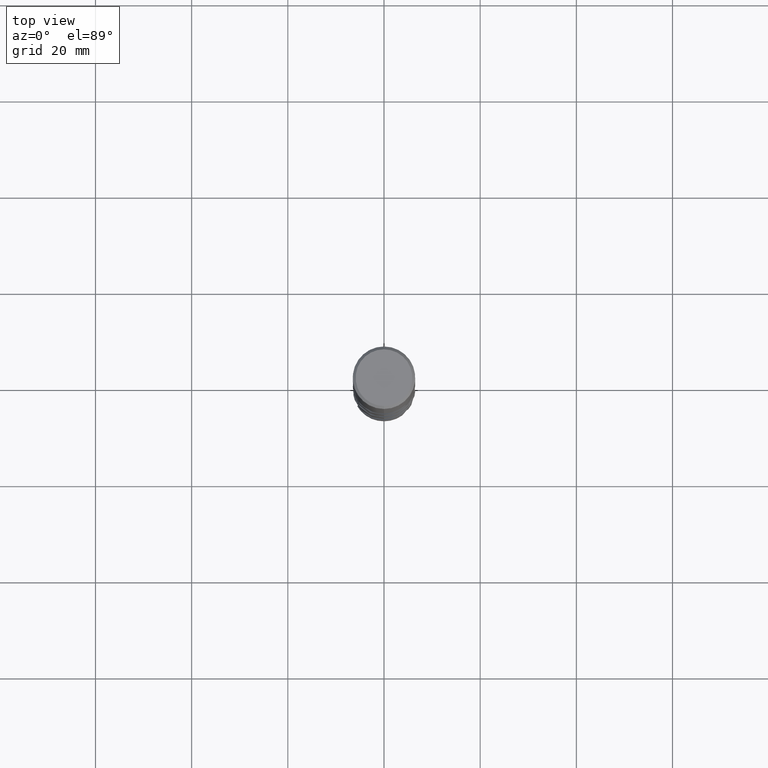
[diagram: clean part render]
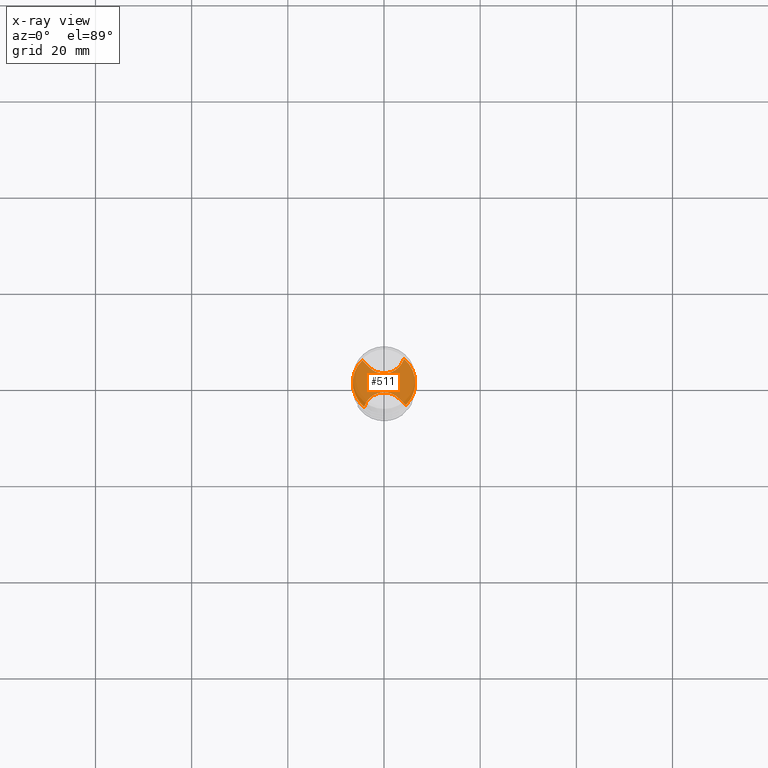
[diagram: x-ray — body ghosted, one internal face saturated and labeled with its STEP entity id]
A machine part, top view, then the same camera in x-ray: the body is ghosted and one INTERNAL B-rep face — a face not visible from any outside direction — is saturated and labeled: STEP entity #511.
In plain terms, the highlighted planar face has unit normal (-0, 0, 1).
Its self-contained STEP definition (entity closure, byte-faithful):
#281=EDGE_CURVE('',#367,#369,#759,.T.);
#303=VERTEX_POINT('',#782);
#353=VERTEX_POINT('',#839);
#357=EDGE_CURVE('',#303,#353,#843,.T.);
#367=VERTEX_POINT('',#854);
#369=VERTEX_POINT('',#856);
#441=EDGE_CURVE('',#451,#683,#934,.T.);
#451=VERTEX_POINT('',#945);
#483=EDGE_CURVE('',#369,#353,#980,.T.);
#511=ADVANCED_FACE('',(#1012),#1013,.T.);
#551=EDGE_CURVE('',#367,#683,#1054,.T.);
#683=VERTEX_POINT('',#1197);
#701=EDGE_CURVE('',#303,#451,#1217,.T.);
#759=B_SPLINE_CURVE_WITH_KNOTS('',3,(#1440,#1441,#1442,#1443,#1444,#1445,#1446,#1447,#1448,#1449,#1450,#1451,#1452,#1453,#1454,#1455),.UNSPECIFIED.,.F.,.F.,(4,2,2,2,2,2,2,4),(0.0,1.69272766620681,3.38528938576246,5.07782537036684,6.77045669752471,8.46324854416003,9.48474749668166,10.5062613168687),.UNSPECIFIED.);
#782=CARTESIAN_POINT('',(-4.13948712457755,-5.01132181719122,-63.2));
#839=CARTESIAN_POINT('',(-4.51925206355144,4.6717299575303,-63.2));
#843=CIRCLE('',#2412,6.4999);
#854=CARTESIAN_POINT('',(4.13948712457755,5.01132181719122,-63.2));
#856=CARTESIAN_POINT('',(-3.06725438271398,3.21954414970437,-63.2));
#934=B_SPLINE_CURVE_WITH_KNOTS('',3,(#4953,#4954,#4955,#4956),.UNSPECIFIED.,.F.,.F.,(4,4),(0.0,4.68854783705501),.UNSPECIFIED.);
#945=CARTESIAN_POINT('',(3.06725438271398,-3.21954414970437,-63.2));
#980=B_SPLINE_CURVE_WITH_KNOTS('',3,(#5219,#5220,#5221,#5222),.UNSPECIFIED.,.F.,.F.,(4,4),(0.0,4.68854783604494),.UNSPECIFIED.);
#1012=FACE_OUTER_BOUND('',#5682,.T.);
#1013=PLANE('',#5683);
#1054=CIRCLE('',#6170,6.4999);
#1197=CARTESIAN_POINT('',(4.51925206355144,-4.6717299575303,-63.2));
#1217=B_SPLINE_CURVE_WITH_KNOTS('',3,(#7000,#7001,#7002,#7003,#7004,#7005,#7006,#7007,#7008,#7009,#7010,#7011,#7012,#7013,#7014,#7015),.UNSPECIFIED.,.F.,.F.,(4,2,2,2,2,2,2,4),(0.0,1.69272766620687,3.38528938576262,5.07782537036708,6.77045669752501,8.4632485441604,9.48474749668207,10.5062613168692),.UNSPECIFIED.);
#1440=CARTESIAN_POINT('',(4.32198762332252,6.5499,-63.2));
#1441=CARTESIAN_POINT('',(4.3567711030581,5.98673060198163,-63.2));
#1442=CARTESIAN_POINT('',(4.28122432116167,5.42215440346621,-63.2));
#1443=CARTESIAN_POINT('',(3.91796917489396,4.35379366624626,-63.2));
#1444=CARTESIAN_POINT('',(3.63375631242431,3.86022337164424,-63.2));
#1445=CARTESIAN_POINT('',(2.89213237675276,3.00981356482723,-63.2));
#1446=CARTESIAN_POINT('',(2.44181813834897,2.6611068177494,-63.2));
#1447=CARTESIAN_POINT('',(1.43284203826779,2.15590972891982,-63.2));
#1448=CARTESIAN_POINT('',(0.883824290602945,2.00426186104255,-63.2));
#1449=CARTESIAN_POINT('',(-0.241493951561731,1.91992846596278,-63.2));
#1450=CARTESIAN_POINT('',(-0.807036541703551,1.98806987421916,-63.2));
#1451=CARTESIAN_POINT('',(-1.66739449168009,2.26804019730336,-63.2));
#1452=CARTESIAN_POINT('',(-1.97763963155897,2.41119867401506,-63.2));
#1453=CARTESIAN_POINT('',(-2.558199795387,2.76717352725625,-63.2));
#1454=CARTESIAN_POINT('',(-2.82649729914106,2.97875420769151,-63.2));
#1455=CARTESIAN_POINT('',(-3.06725438271398,3.21954414970437,-63.2));
#2412=AXIS2_PLACEMENT_3D('',#7215,#7216,#7217);
#4953=CARTESIAN_POINT('',(3.06725438278469,-3.21954414963367,-63.2));
#4954=CARTESIAN_POINT('',(4.17228780394936,-4.32471337062981,-63.2));
#4955=CARTESIAN_POINT('',(5.29134438865489,-5.44392344529883,-63.2));
#4956=CARTESIAN_POINT('',(6.39714621457818,-6.54990000000001,-63.2));
#5219=CARTESIAN_POINT('',(-3.06725438278469,3.21954414963367,-63.2));
#5220=CARTESIAN_POINT('',(-4.1722878037113,4.32471337039172,-63.2));
#5221=CARTESIAN_POINT('',(-5.2913443885753,5.44392344521923,-63.2));
#5222=CARTESIAN_POINT('',(-6.39714621457818,6.5499,-63.2));
#5682=EDGE_LOOP('',(#7385,#7386,#7387,#7388,#7389,#7390));
#5683=AXIS2_PLACEMENT_3D('',#7391,#7392,#7393);
#6170=AXIS2_PLACEMENT_3D('',#7404,#7405,#7406);
#7000=CARTESIAN_POINT('',(-4.32198762332252,-6.5499,-63.2));
#7001=CARTESIAN_POINT('',(-4.35677110305811,-5.98673060198162,-63.2));
#7002=CARTESIAN_POINT('',(-4.28122432116166,-5.4221544034662,-63.2));
#7003=CARTESIAN_POINT('',(-3.91796917489396,-4.35379366624626,-63.2));
#7004=CARTESIAN_POINT('',(-3.63375631242431,-3.86022337164424,-63.2));
#7005=CARTESIAN_POINT('',(-2.89213237675276,-3.00981356482723,-63.2));
#7006=CARTESIAN_POINT('',(-2.44181813834898,-2.6611068177494,-63.2));
#7007=CARTESIAN_POINT('',(-1.43284203826779,-2.15590972891981,-63.2));
#7008=CARTESIAN_POINT('',(-0.883824290602939,-2.00426186104255,-63.2));
#7009=CARTESIAN_POINT('',(0.241493951561732,-1.91992846596278,-63.2));
#7010=CARTESIAN_POINT('',(0.807036541703551,-1.98806987421916,-63.2));
#7011=CARTESIAN_POINT('',(1.66739449168009,-2.26804019730336,-63.2));
#7012=CARTESIAN_POINT('',(1.97763963155898,-2.41119867401506,-63.2));
#7013=CARTESIAN_POINT('',(2.558199795387,-2.76717352725625,-63.2));
#7014=CARTESIAN_POINT('',(2.82649729914107,-2.97875420769151,-63.2));
#7015=CARTESIAN_POINT('',(3.06725438271398,-3.21954414970437,-63.2));
#7215=CARTESIAN_POINT('',(0.0,0.0,-63.2));
#7216=DIRECTION('',(0.0,0.0,-1.0));
#7217=DIRECTION('',(0.0,1.0,0.0));
#7385=ORIENTED_EDGE('',*,*,#441,.T.);
#7386=ORIENTED_EDGE('',*,*,#551,.F.);
#7387=ORIENTED_EDGE('',*,*,#281,.T.);
#7388=ORIENTED_EDGE('',*,*,#483,.T.);
#7389=ORIENTED_EDGE('',*,*,#357,.F.);
#7390=ORIENTED_EDGE('',*,*,#701,.T.);
#7391=CARTESIAN_POINT('',(0.0,3.24995,-63.2));
#7392=DIRECTION('',(-0.0,0.0,1.0));
#7393=DIRECTION('',(0.0,-1.0,0.0));
#7404=CARTESIAN_POINT('',(0.0,0.0,-63.2));
#7405=DIRECTION('',(0.0,0.0,-1.0));
#7406=DIRECTION('',(0.0,1.0,0.0));